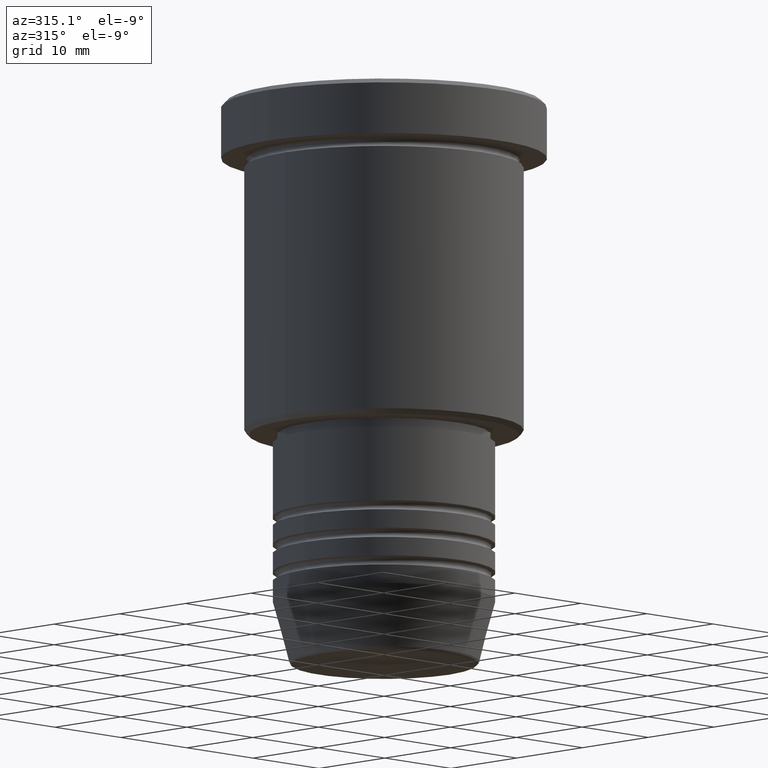
[diagram: clean part render]
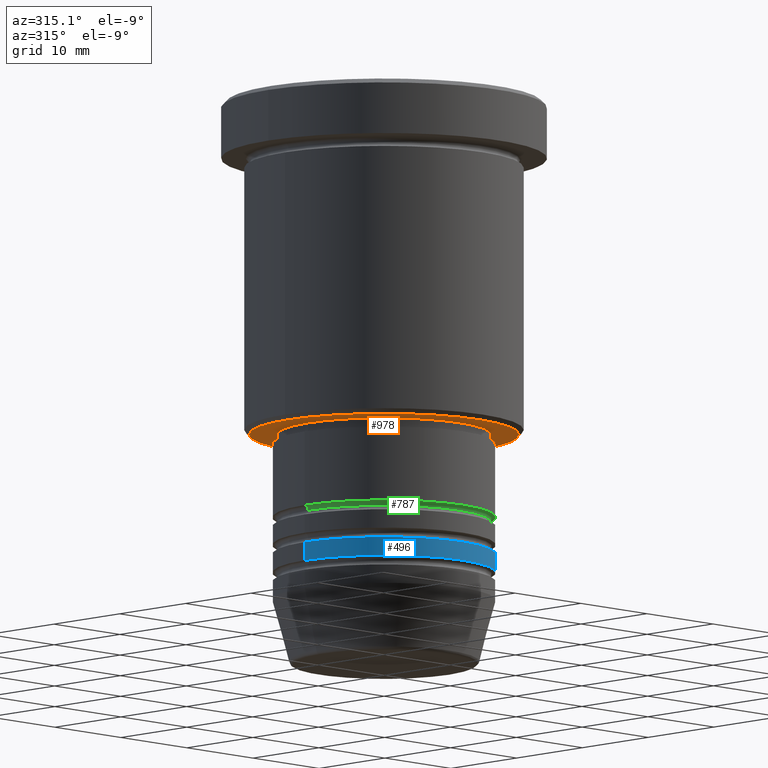
[diagram: same view with three faces highlighted in distinct colors, each labeled with its STEP entity id]
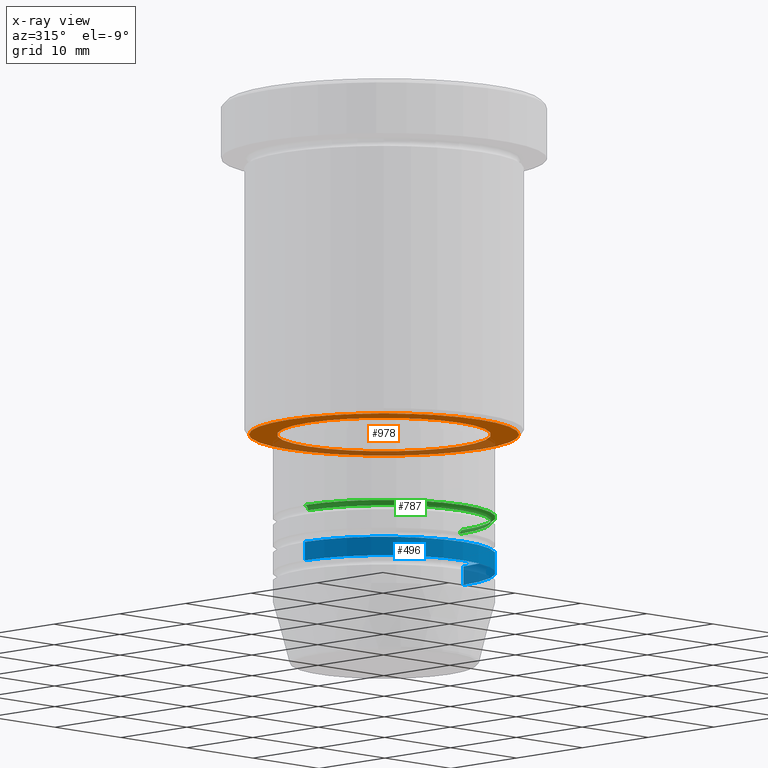
[diagram: x-ray of the same camera — body ghosted, the three highlighted faces saturated]
A machine part, auxiliary view with three faces highlighted in distinct colors.
The next image is the same camera in x-ray (body ghosted, the three faces saturated) — at least one of them is partly hidden behind the body in this view.
Their STEP definitions:

[orange] entity #978 — the highlighted planar face has unit normal (0, 0, -1).
#14 = ORIENTED_EDGE ( 'NONE', *, *, #1093, .T. ) ;
#39 = CARTESIAN_POINT ( 'NONE',  ( 0.000000000000000000, 0.000000000000000000, -35.99999999999999289 ) ) ;
#78 = CARTESIAN_POINT ( 'NONE',  ( 14.49999999999999112, 0.000000000000000000, -35.99999999999999289 ) ) ;
#106 = CIRCLE ( 'NONE', #290, 11.50000000000000000 ) ;
#123 = EDGE_CURVE ( 'NONE', #738, #370, #106, .T. ) ;
#125 = FACE_BOUND ( 'NONE', #185, .T. ) ;
#170 = CARTESIAN_POINT ( 'NONE',  ( 0.000000000000000000, 0.000000000000000000, -35.99999999999999289 ) ) ;
#179 = CIRCLE ( 'NONE', #602, 11.50000000000000000 ) ;
#185 = EDGE_LOOP ( 'NONE', ( #461, #931 ) ) ;
#234 = CARTESIAN_POINT ( 'NONE',  ( 0.000000000000000000, 0.000000000000000000, -35.99999999999999289 ) ) ;
#288 = ORIENTED_EDGE ( 'NONE', *, *, #416, .T. ) ;
#290 = AXIS2_PLACEMENT_3D ( 'NONE', #39, #857, #946 ) ;
#298 = FACE_OUTER_BOUND ( 'NONE', #335, .T. ) ;
#308 = DIRECTION ( 'NONE',  ( 0.000000000000000000, 0.000000000000000000, -1.000000000000000000 ) ) ;
#315 = CIRCLE ( 'NONE', #975, 14.49999999999999112 ) ;
#335 = EDGE_LOOP ( 'NONE', ( #14, #288 ) ) ;
#344 = DIRECTION ( 'NONE',  ( 0.000000000000000000, 0.000000000000000000, -1.000000000000000000 ) ) ;
#361 = DIRECTION ( 'NONE',  ( 1.000000000000000000, 0.000000000000000000, 0.000000000000000000 ) ) ;
#370 = VERTEX_POINT ( 'NONE', #860 ) ;
#416 = EDGE_CURVE ( 'NONE', #654, #917, #971, .T. ) ;
#417 = EDGE_CURVE ( 'NONE', #370, #738, #179, .T. ) ;
#461 = ORIENTED_EDGE ( 'NONE', *, *, #417, .T. ) ;
#485 = CARTESIAN_POINT ( 'NONE',  ( 0.000000000000000000, 15.00000000000000000, -35.99999999999999289 ) ) ;
#491 = AXIS2_PLACEMENT_3D ( 'NONE', #485, #851, #646 ) ;
#515 = CARTESIAN_POINT ( 'NONE',  ( -11.50000000000000000, 1.408343819019456176E-15, -35.99999999999999289 ) ) ;
#602 = AXIS2_PLACEMENT_3D ( 'NONE', #1083, #985, #361 ) ;
#646 = DIRECTION ( 'NONE',  ( -1.000000000000000000, 0.000000000000000000, -0.000000000000000000 ) ) ;
#654 = VERTEX_POINT ( 'NONE', #991 ) ;
#723 = DIRECTION ( 'NONE',  ( -1.000000000000000000, 0.000000000000000000, 0.000000000000000000 ) ) ;
#738 = VERTEX_POINT ( 'NONE', #515 ) ;
#784 = DIRECTION ( 'NONE',  ( -1.000000000000000000, 0.000000000000000000, 0.000000000000000000 ) ) ;
#851 = DIRECTION ( 'NONE',  ( 0.000000000000000000, 0.000000000000000000, -1.000000000000000000 ) ) ;
#857 = DIRECTION ( 'NONE',  ( -0.000000000000000000, -0.000000000000000000, 1.000000000000000000 ) ) ;
#860 = CARTESIAN_POINT ( 'NONE',  ( 11.50000000000000000, 0.000000000000000000, -35.99999999999999289 ) ) ;
#917 = VERTEX_POINT ( 'NONE', #78 ) ;
#931 = ORIENTED_EDGE ( 'NONE', *, *, #123, .T. ) ;
#946 = DIRECTION ( 'NONE',  ( 1.000000000000000000, 0.000000000000000000, 0.000000000000000000 ) ) ;
#971 = CIRCLE ( 'NONE', #1120, 14.49999999999999112 ) ;
#975 = AXIS2_PLACEMENT_3D ( 'NONE', #234, #308, #784 ) ;
#978 = ADVANCED_FACE ( 'NONE', ( #298, #125 ), #1017, .T. ) ;
#985 = DIRECTION ( 'NONE',  ( -0.000000000000000000, -0.000000000000000000, 1.000000000000000000 ) ) ;
#991 = CARTESIAN_POINT ( 'NONE',  ( -14.49999999999999112, 1.806354028742345013E-15, -35.99999999999999289 ) ) ;
#1017 = PLANE ( 'NONE',  #491 ) ;
#1083 = CARTESIAN_POINT ( 'NONE',  ( 0.000000000000000000, 0.000000000000000000, -35.99999999999999289 ) ) ;
#1093 = EDGE_CURVE ( 'NONE', #917, #654, #315, .T. ) ;
#1120 = AXIS2_PLACEMENT_3D ( 'NONE', #170, #344, #723 ) ;

[blue] entity #496 — the highlighted cylindrical surface (partial cylindrical patch) has radius 12 mm, axis along (-0, -0, 1).
#11 = VECTOR ( 'NONE', #711, 1000.000000000000000 ) ;
#16 = CARTESIAN_POINT ( 'NONE',  ( 12.00000000000000000, 0.000000000000000000, -48.99999999999997158 ) ) ;
#33 = VERTEX_POINT ( 'NONE', #827 ) ;
#52 = AXIS2_PLACEMENT_3D ( 'NONE', #792, #1042, #872 ) ;
#99 = DIRECTION ( 'NONE',  ( 1.000000000000000000, 0.000000000000000000, 0.000000000000000000 ) ) ;
#122 = ORIENTED_EDGE ( 'NONE', *, *, #390, .T. ) ;
#165 = CIRCLE ( 'NONE', #52, 12.00000000000000000 ) ;
#216 = CARTESIAN_POINT ( 'NONE',  ( 12.00000000000000000, 0.000000000000000000, 0.000000000000000000 ) ) ;
#292 = CIRCLE ( 'NONE', #1073, 12.00000000000000000 ) ;
#300 = LINE ( 'NONE', #216, #680 ) ;
#309 = FACE_OUTER_BOUND ( 'NONE', #429, .T. ) ;
#345 = VERTEX_POINT ( 'NONE', #1124 ) ;
#357 = VERTEX_POINT ( 'NONE', #16 ) ;
#366 = EDGE_CURVE ( 'NONE', #383, #357, #300, .T. ) ;
#383 = VERTEX_POINT ( 'NONE', #927 ) ;
#390 = EDGE_CURVE ( 'NONE', #33, #383, #292, .T. ) ;
#425 = CARTESIAN_POINT ( 'NONE',  ( -12.00000000000000000, 1.469576158976823947E-15, 0.000000000000000000 ) ) ;
#427 = ORIENTED_EDGE ( 'NONE', *, *, #773, .F. ) ;
#429 = EDGE_LOOP ( 'NONE', ( #427, #122, #1008, #474 ) ) ;
#432 = CARTESIAN_POINT ( 'NONE',  ( 0.000000000000000000, 0.000000000000000000, 0.000000000000000000 ) ) ;
#450 = LINE ( 'NONE', #425, #11 ) ;
#472 = CARTESIAN_POINT ( 'NONE',  ( 0.000000000000000000, 0.000000000000000000, -50.99999999999997868 ) ) ;
#474 = ORIENTED_EDGE ( 'NONE', *, *, #1037, .F. ) ;
#496 = ADVANCED_FACE ( 'NONE', ( #309 ), #579, .T. ) ;
#507 = DIRECTION ( 'NONE',  ( -0.000000000000000000, -0.000000000000000000, 1.000000000000000000 ) ) ;
#519 = AXIS2_PLACEMENT_3D ( 'NONE', #432, #507, #806 ) ;
#553 = DIRECTION ( 'NONE',  ( -0.000000000000000000, -0.000000000000000000, 1.000000000000000000 ) ) ;
#579 = CYLINDRICAL_SURFACE ( 'NONE', #519, 12.00000000000000000 ) ;
#580 = DIRECTION ( 'NONE',  ( -0.000000000000000000, -0.000000000000000000, 1.000000000000000000 ) ) ;
#680 = VECTOR ( 'NONE', #580, 1000.000000000000000 ) ;
#711 = DIRECTION ( 'NONE',  ( -0.000000000000000000, -0.000000000000000000, 1.000000000000000000 ) ) ;
#773 = EDGE_CURVE ( 'NONE', #33, #345, #450, .T. ) ;
#792 = CARTESIAN_POINT ( 'NONE',  ( 0.000000000000000000, 0.000000000000000000, -48.99999999999997158 ) ) ;
#806 = DIRECTION ( 'NONE',  ( 1.000000000000000000, 0.000000000000000000, 0.000000000000000000 ) ) ;
#827 = CARTESIAN_POINT ( 'NONE',  ( -12.00000000000000000, 1.469576158976823947E-15, -50.99999999999997868 ) ) ;
#872 = DIRECTION ( 'NONE',  ( 1.000000000000000000, 0.000000000000000000, 0.000000000000000000 ) ) ;
#927 = CARTESIAN_POINT ( 'NONE',  ( 12.00000000000000000, 0.000000000000000000, -50.99999999999997868 ) ) ;
#1008 = ORIENTED_EDGE ( 'NONE', *, *, #366, .T. ) ;
#1037 = EDGE_CURVE ( 'NONE', #345, #357, #165, .T. ) ;
#1042 = DIRECTION ( 'NONE',  ( -0.000000000000000000, -0.000000000000000000, 1.000000000000000000 ) ) ;
#1073 = AXIS2_PLACEMENT_3D ( 'NONE', #472, #553, #99 ) ;
#1124 = CARTESIAN_POINT ( 'NONE',  ( -12.00000000000000000, 1.469576158976823947E-15, -48.99999999999997158 ) ) ;

[green] entity #787 — the highlighted toroidal blend (fillet) surface has major radius 12 mm and minor (blend) radius 0.5 mm.
#4 = DIRECTION ( 'NONE',  ( 1.000000000000000000, 0.000000000000000000, 0.000000000000000000 ) ) ;
#135 = EDGE_CURVE ( 'NONE', #1099, #810, #776, .T. ) ;
#194 = VERTEX_POINT ( 'NONE', #593 ) ;
#236 = DIRECTION ( 'NONE',  ( -1.224646799147353207E-16, 1.000000000000000000, 0.000000000000000000 ) ) ;
#237 = AXIS2_PLACEMENT_3D ( 'NONE', #687, #236, #501 ) ;
#358 = CARTESIAN_POINT ( 'NONE',  ( 12.00000000000000000, 0.000000000000000000, -44.99999999999997158 ) ) ;
#395 = EDGE_CURVE ( 'NONE', #194, #1099, #740, .T. ) ;
#415 = CARTESIAN_POINT ( 'NONE',  ( -12.00000000000000000, 1.469576158976823947E-15, -44.99999999999997158 ) ) ;
#445 = CARTESIAN_POINT ( 'NONE',  ( 0.000000000000000000, 0.000000000000000000, -44.99999999999997158 ) ) ;
#458 = CARTESIAN_POINT ( 'NONE',  ( 0.000000000000000000, 0.000000000000000000, -45.49999999999997158 ) ) ;
#465 = AXIS2_PLACEMENT_3D ( 'NONE', #539, #803, #616 ) ;
#471 = DIRECTION ( 'NONE',  ( 0.000000000000000000, 0.000000000000000000, -1.000000000000000000 ) ) ;
#501 = DIRECTION ( 'NONE',  ( -1.000000000000000000, -1.224646799147353454E-16, 0.000000000000000000 ) ) ;
#520 = AXIS2_PLACEMENT_3D ( 'NONE', #445, #1178, #4 ) ;
#524 = DIRECTION ( 'NONE',  ( -0.000000000000000000, -1.000000000000000000, -0.000000000000000000 ) ) ;
#539 = CARTESIAN_POINT ( 'NONE',  ( 0.000000000000000000, 0.000000000000000000, -45.49999999999997158 ) ) ;
#561 = DIRECTION ( 'NONE',  ( -0.000000000000000000, -0.000000000000000000, 1.000000000000000000 ) ) ;
#572 = ORIENTED_EDGE ( 'NONE', *, *, #635, .F. ) ;
#593 = CARTESIAN_POINT ( 'NONE',  ( -11.50000000000000000, 1.438959988998139963E-15, -45.49999999999997158 ) ) ;
#607 = ORIENTED_EDGE ( 'NONE', *, *, #770, .F. ) ;
#609 = CARTESIAN_POINT ( 'NONE',  ( -12.00000000000000000, 0.000000000000000000, -45.49999999999997158 ) ) ;
#616 = DIRECTION ( 'NONE',  ( -1.000000000000000000, 0.000000000000000000, 0.000000000000000000 ) ) ;
#635 = EDGE_CURVE ( 'NONE', #194, #1128, #944, .T. ) ;
#687 = CARTESIAN_POINT ( 'NONE',  ( 12.00000000000000000, 1.469576158976823947E-15, -45.49999999999997158 ) ) ;
#740 = CIRCLE ( 'NONE', #811, 11.50000000000000000 ) ;
#770 = EDGE_CURVE ( 'NONE', #1128, #810, #1045, .T. ) ;
#776 = CIRCLE ( 'NONE', #237, 0.5000000000000004441 ) ;
#787 = ADVANCED_FACE ( 'NONE', ( #1086 ), #973, .F. ) ;
#801 = ORIENTED_EDGE ( 'NONE', *, *, #395, .T. ) ;
#803 = DIRECTION ( 'NONE',  ( 0.000000000000000000, 0.000000000000000000, -1.000000000000000000 ) ) ;
#810 = VERTEX_POINT ( 'NONE', #358 ) ;
#811 = AXIS2_PLACEMENT_3D ( 'NONE', #458, #561, #1075 ) ;
#897 = ORIENTED_EDGE ( 'NONE', *, *, #135, .T. ) ;
#944 = CIRCLE ( 'NONE', #1001, 0.5000000000000004441 ) ;
#973 = TOROIDAL_SURFACE ( 'NONE', #465, 12.00000000000000000, 0.5000000000000000000 ) ;
#1001 = AXIS2_PLACEMENT_3D ( 'NONE', #609, #524, #471 ) ;
#1021 = EDGE_LOOP ( 'NONE', ( #801, #897, #607, #572 ) ) ;
#1045 = CIRCLE ( 'NONE', #520, 12.00000000000000000 ) ;
#1075 = DIRECTION ( 'NONE',  ( 1.000000000000000000, 0.000000000000000000, 0.000000000000000000 ) ) ;
#1086 = FACE_OUTER_BOUND ( 'NONE', #1021, .T. ) ;
#1099 = VERTEX_POINT ( 'NONE', #1138 ) ;
#1128 = VERTEX_POINT ( 'NONE', #415 ) ;
#1138 = CARTESIAN_POINT ( 'NONE',  ( 11.50000000000000000, 0.000000000000000000, -45.49999999999997158 ) ) ;
#1178 = DIRECTION ( 'NONE',  ( -0.000000000000000000, -0.000000000000000000, 1.000000000000000000 ) ) ;